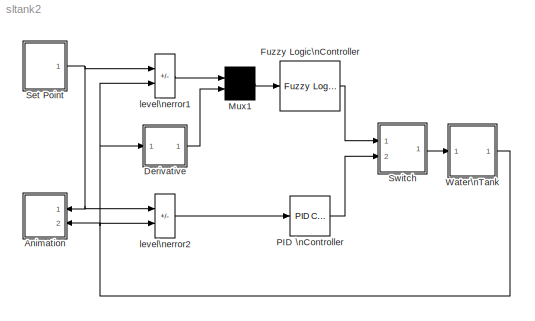
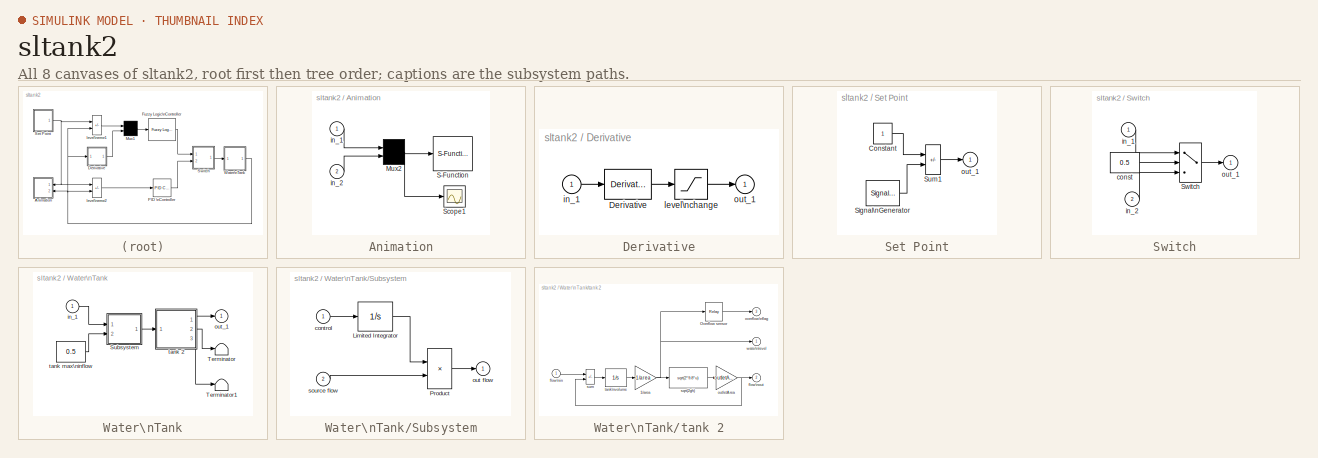
[diagram: thumbnail index - all 8 canvases of the model, root first then tree order]
MODEL sltank2
KIND model
CONFIG AbsTol = 1e-6
CONFIG FixedStep = auto
CONFIG MaxStep = 0.2
CONFIG MinStep = auto
CONFIG PreLoadFcn = tank2=readfis('tank2');
CONFIG RelTol = 1e-3
CONFIG Solver = ode23
CONFIG SolverMode = SingleTasking
CONFIG StartTime = 0
CONFIG StopTime = 10000
BLOCK [SubSystem] Animation
  MaskIconFrame = on
  MaskIconOpaque = on
  MaskIconRotate = none
  MaskIconUnits = autoscale
  Ports = [2]
  RTWFcnNameOpts = Auto
  RTWFileNameOpts = Auto
  RTWSystemCode = Auto
  ShowPortLabels = off
  TreatAsAtomicUnit = off
BLOCK [Mux] Animation/Mux2
  DisplayOption = none
  Inputs = 2
  Ports = [2, 1]
BLOCK [S-Function] Animation/S-Function
  FunctionName = animtank
  Parameters = 1
  PortCounts = []
  Ports = [1]
  SFunctionModules = ''
BLOCK [Scope] Animation/Scope1
  DataFormat = Array
  Decimation = 1
  Floating = off
  Grid = on
  LimitDataPoints = on
  MaxDataPoints = 5000
  NumInputPorts = 1
  Ports = [1]
  SampleInput = off
  SampleTime = 0
  SaveName = ScopeData
  SaveToWorkspace = off
  TickLabels = on
  TimeRange = 200.000000
  YMax = 2.000000
  YMin = -2.000000
  ZoomMode = on
BLOCK [Inport] Animation/in_1
  Interpolate = on
  Port = 1
BLOCK [Inport] Animation/in_2
  Interpolate = on
  Port = 2
BLOCK [SubSystem] Derivative
  Ports = [1, 1]
  RTWFcnNameOpts = Auto
  RTWFileNameOpts = Auto
  RTWSystemCode = Auto
  ShowPortLabels = off
  TreatAsAtomicUnit = off
BLOCK [Derivative] Derivative/Derivative
BLOCK [Inport] Derivative/in_1
  Interpolate = on
  Port = 1
BLOCK [Saturate] Derivative/level\nchange
  LinearizeAsGain = on
  LowerLimit = -0.1
  UpperLimit = 0.1
BLOCK [Outport] Derivative/out_1
  InitialOutput = []
  OutputWhenDisabled = held
  Port = 1
BLOCK [Reference] Fuzzy Logic\nController  REF=fuzblock/Fuzzy Logic \nController  (lib defined in mdl_858b3b3e7478)
  Ports = [1, 1]
  SourceBlock = fuzblock/Fuzzy Logic \nController
  SourceType = FIS
  fis = tank2
BLOCK [Mux] Mux1
  DisplayOption = none
  Inputs = 2
  Ports = [2, 1]
BLOCK [Reference] PID \nController  REF=simulink_extras/Additional\nLinear/PID Controller
  D = 1
  I = 0
  P = 2
  Ports = [1, 1]
  SourceBlock = simulink_extras/Additional\nLinear/PID Controller
  SourceType = PID Controller
BLOCK [SubSystem] Set Point
  Ports = [0, 1]
  RTWFcnNameOpts = Auto
  RTWFileNameOpts = Auto
  RTWSystemCode = Auto
  ShowPortLabels = off
  TreatAsAtomicUnit = off
BLOCK [Constant] Set Point/Constant
  Value = 1
  VectorParams1D = on
BLOCK [SignalGenerator] Set Point/Signal\nGenerator
  Amplitude = 0.500000
  Frequency = 0.250000
  Units = rad/sec
  VectorParams1D = on
  WaveForm = square
BLOCK [Sum] Set Point/Sum1
  IconShape = rectangular
  Inputs = +-
  Ports = [2, 1]
  SaturateOnIntegerOverflow = on
BLOCK [Outport] Set Point/out_1
  InitialOutput = []
  OutputWhenDisabled = held
  Port = 1
BLOCK [SubSystem] Switch
  Ports = [2, 1]
  RTWFcnNameOpts = Auto
  RTWFileNameOpts = Auto
  RTWSystemCode = Auto
  ShowPortLabels = off
  TreatAsAtomicUnit = off
BLOCK [Switch] Switch/Switch
  Threshold = 0
BLOCK [Constant] Switch/const
  Value = 0.5
  VectorParams1D = on
BLOCK [Inport] Switch/in_1
  Interpolate = on
  Port = 1
BLOCK [Inport] Switch/in_2
  Interpolate = on
  Port = 2
BLOCK [Outport] Switch/out_1
  InitialOutput = []
  OutputWhenDisabled = held
  Port = 1
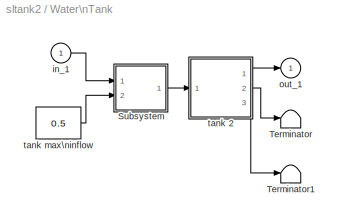
BLOCK [SubSystem] Water\nTank
  Ports = [1, 1]
  RTWFcnNameOpts = Auto
  RTWFileNameOpts = Auto
  RTWSystemCode = Auto
  ShowPortLabels = off
  TreatAsAtomicUnit = off
BLOCK [SubSystem] Water\nTank/Subsystem
  MaskDescription = Valve
  MaskDisplay = disp('VALVE')
  MaskEnableString = on
  MaskIconFrame = on
  MaskIconOpaque = on
  MaskIconRotate = none
  MaskIconUnits = autoscale
  MaskInitialization = InitialPosition = @1;
  MaskPromptString = Initial position [0=closed 1=open]:
  MaskStyleString = edit
  MaskToolTipString = on
  MaskTunableValueString = on
  MaskType = Valve
  MaskValueString = 0
  MaskVisibilityString = on
  Ports = [2, 1]
  RTWFcnNameOpts = Auto
  RTWFileNameOpts = Auto
  RTWSystemCode = Auto
  ShowPortLabels = off
  TreatAsAtomicUnit = off
BLOCK [Integrator] Water\nTank/Subsystem/Limited Integrator
  AbsoluteTolerance = auto
  ExternalReset = none
  InitialCondition = InitialPosition
  InitialConditionSource = internal
  LimitOutput = on
  LowerSaturationLimit = 0
  Ports = [1, 1]
  ShowSaturationPort = off
  ShowStatePort = off
  UpperSaturationLimit = 1
BLOCK [Product] Water\nTank/Subsystem/Product
  Inputs = 2
  Multiplication = Element-wise(.*)
  Ports = [2, 1]
  SaturateOnIntegerOverflow = on
BLOCK [Inport] Water\nTank/Subsystem/control
  Interpolate = on
  Port = 1
BLOCK [Outport] Water\nTank/Subsystem/out flow
  InitialOutput = []
  OutputWhenDisabled = held
  Port = 1
BLOCK [Inport] Water\nTank/Subsystem/source flow
  Interpolate = on
  Port = 2
BLOCK [Terminator] Water\nTank/Terminator
BLOCK [Terminator] Water\nTank/Terminator1
BLOCK [Inport] Water\nTank/in_1
  Interpolate = on
  Port = 1
BLOCK [Outport] Water\nTank/out_1
  InitialOutput = []
  OutputWhenDisabled = held
  Port = 1
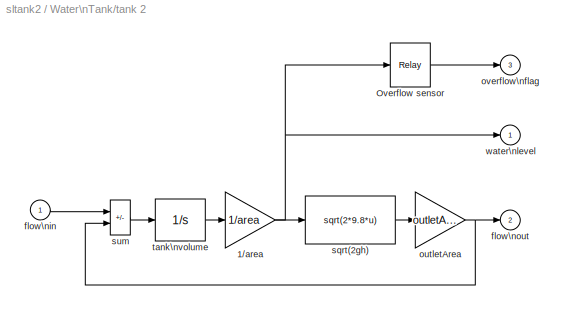
BLOCK [SubSystem] Water\nTank/tank 2
  MaskCallbackString = ||||
  MaskDescription = Cylindrical water tank with overflow signal
  MaskDisplay = disp('WATER\\nTANK')
  MaskEnableString = on,on,on,on,on
  MaskIconFrame = on
  MaskIconOpaque = on
  MaskIconRotate = none
  MaskIconUnits = autoscale
  MaskInitialization = ht=@1;area=@2;outletArea=@3;overflowLimit=@4;initialHt=@5;
  MaskPromptString = Height of tank (m):|Bottom area (m^2):|Out pipe crossection (m^2):|Overflow sensor distance from top (m):|Initial level height (m):
  MaskStyleString = edit,edit,edit,edit,edit
  MaskToolTipString = on,on,on,on,on
  MaskTunableValueString = on,on,on,on,on
  MaskType = Water tank
  MaskValueString = 2|1|0.05|0|0.5
  MaskVisibilityString = on,on,on,on,on
  Ports = [1, 3]
  RTWFcnNameOpts = Auto
  RTWFileNameOpts = Auto
  RTWSystemCode = Auto
  ShowPortLabels = off
  TreatAsAtomicUnit = off
BLOCK [Gain] Water\nTank/tank 2/1//area
  Gain = 1/area
  Multiplication = Element-wise(K.*u)
  SaturateOnIntegerOverflow = on
BLOCK [Relay] Water\nTank/tank 2/Overflow sensor
  OffOutputValue = 0
  OffSwitchValue = ht - overflowLimit
  OnOutputValue = 1
  OnSwitchValue = ht - overflowLimit
BLOCK [Inport] Water\nTank/tank 2/flow\nin
  Interpolate = on
  Port = 1
BLOCK [Outport] Water\nTank/tank 2/flow\nout
  InitialOutput = []
  OutputWhenDisabled = held
  Port = 2
BLOCK [Gain] Water\nTank/tank 2/outletArea
  Gain = outletArea
  Multiplication = Element-wise(K.*u)
  SaturateOnIntegerOverflow = on
BLOCK [Outport] Water\nTank/tank 2/overflow\nflag
  InitialOutput = []
  OutputWhenDisabled = held
  Port = 3
BLOCK [Fcn] Water\nTank/tank 2/sqrt(2gh)
  Expr = sqrt(2*9.8*u)
BLOCK [Sum] Water\nTank/tank 2/sum
  IconShape = rectangular
  Inputs = +-
  Ports = [2, 1]
  SaturateOnIntegerOverflow = on
BLOCK [Integrator] Water\nTank/tank 2/tank\nvolume
  AbsoluteTolerance = auto
  ExternalReset = none
  InitialCondition = initialHt * area
  InitialConditionSource = internal
  LimitOutput = on
  LowerSaturationLimit = 0
  Ports = [1, 1]
  ShowSaturationPort = off
  ShowStatePort = off
  UpperSaturationLimit = ht * area
BLOCK [Outport] Water\nTank/tank 2/water\nlevel
  InitialOutput = []
  OutputWhenDisabled = held
  Port = 1
BLOCK [Constant] Water\nTank/tank max\ninflow
  Value = 0.5
  VectorParams1D = on
BLOCK [Sum] level\nerror1
  IconShape = rectangular
  Inputs = +-
  Ports = [2, 1]
  SaturateOnIntegerOverflow = on
BLOCK [Sum] level\nerror2
  IconShape = rectangular
  Inputs = +-
  Ports = [2, 1]
  SaturateOnIntegerOverflow = on
NET Animation/Mux2:1 -> Animation/S-Function:1, Animation/Scope1:1
LINE Animation/in_1:1 -> Animation/Mux2:1
LINE Animation/in_2:1 -> Animation/Mux2:2
LINE Derivative/Derivative:1 -> Derivative/level\nchange:1
LINE Derivative/in_1:1 -> Derivative/Derivative:1
LINE Derivative/level\nchange:1 -> Derivative/out_1:1
LINE Derivative:1 -> Mux1:2
LINE Fuzzy Logic\nController:1 -> Switch:1
LINE Mux1:1 -> Fuzzy Logic\nController:1
LINE PID \nController:1 -> Switch:2
LINE Set Point/Constant:1 -> Set Point/Sum1:1
LINE Set Point/Signal\nGenerator:1 -> Set Point/Sum1:2
LINE Set Point/Sum1:1 -> Set Point/out_1:1
NET Set Point:1 -> Animation:1, level\nerror1:1, level\nerror2:1
LINE Switch/Switch:1 -> Switch/out_1:1
LINE Switch/const:1 -> Switch/Switch:2
LINE Switch/in_1:1 -> Switch/Switch:1
LINE Switch/in_2:1 -> Switch/Switch:3
LINE Switch:1 -> Water\nTank:1
LINE Water\nTank/Subsystem/Limited Integrator:1 -> Water\nTank/Subsystem/Product:1
LINE Water\nTank/Subsystem/Product:1 -> Water\nTank/Subsystem/out flow:1
LINE Water\nTank/Subsystem/control:1 -> Water\nTank/Subsystem/Limited Integrator:1
LINE Water\nTank/Subsystem/source flow:1 -> Water\nTank/Subsystem/Product:2
LINE Water\nTank/Subsystem:1 -> Water\nTank/tank 2:1
LINE Water\nTank/in_1:1 -> Water\nTank/Subsystem:1
NET Water\nTank/tank 2/1//area:1 -> Water\nTank/tank 2/Overflow sensor:1, Water\nTank/tank 2/sqrt(2gh):1, Water\nTank/tank 2/water\nlevel:1
LINE Water\nTank/tank 2/Overflow sensor:1 -> Water\nTank/tank 2/overflow\nflag:1
LINE Water\nTank/tank 2/flow\nin:1 -> Water\nTank/tank 2/sum:1
NET Water\nTank/tank 2/outletArea:1 -> Water\nTank/tank 2/flow\nout:1, Water\nTank/tank 2/sum:2
LINE Water\nTank/tank 2/sqrt(2gh):1 -> Water\nTank/tank 2/outletArea:1
LINE Water\nTank/tank 2/sum:1 -> Water\nTank/tank 2/tank\nvolume:1
LINE Water\nTank/tank 2/tank\nvolume:1 -> Water\nTank/tank 2/1//area:1
LINE Water\nTank/tank 2:1 -> Water\nTank/out_1:1
LINE Water\nTank/tank 2:2 -> Water\nTank/Terminator:1
LINE Water\nTank/tank 2:3 -> Water\nTank/Terminator1:1
LINE Water\nTank/tank max\ninflow:1 -> Water\nTank/Subsystem:2
NET Water\nTank:1 -> Animation:2, Derivative:1, level\nerror1:2, level\nerror2:2
LINE level\nerror1:1 -> Mux1:1
LINE level\nerror2:1 -> PID \nController:1
note: NET lines group one-source signal fan-out (src -> all destinations, sorted); 1:1 wires keep LINE
